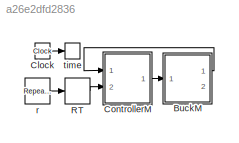
MODEL slx_a26e2dfd2836
KIND model
CONFIG AbsTol = auto
CONFIG FixedStep = t_step
CONFIG MaxStep = auto
CONFIG MinStep = auto
CONFIG RelTol = 1e-3
CONFIG SampleTimeConstraint = Unconstrained
CONFIG Solver = ode5
CONFIG SolverMode = Auto
CONFIG SolverName = ode5
CONFIG StartTime = 0.0
CONFIG StopTime = tf
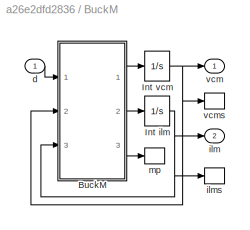
BLOCK [SubSystem] BuckM
  Ports = [1, 2]
  RequestExecContextInheritance = off
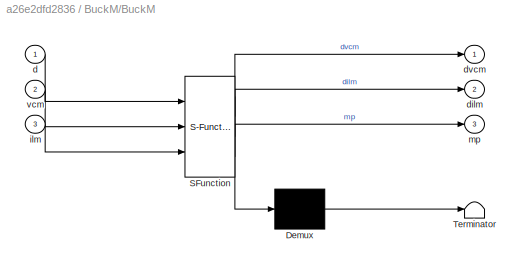
BLOCK [SubSystem] BuckM/BuckM
  ErrorFcn = Stateflow.Translate.translate
  PermitHierarchicalResolution = ExplicitOnly
  Ports = [3, 3]
  RequestExecContextInheritance = off
  SFBlockType = MATLAB Function
  TreatAsAtomicUnit = on
BLOCK [Demux] BuckM/BuckM/ Demux 
  Outputs = 1
  Ports = [1, 1]
BLOCK [S-Function] BuckM/BuckM/ SFunction 
  EnableBusSupport = on
  FunctionName = sf_sfun
  Parameters = Cp,DBm,L,R,Ts,Vi
  PortCounts = [3 4]
  Ports = [3, 4]
  Tag = Stateflow S-Function Bulk_FL_PP_SE_Sim 3
BLOCK [Terminator] BuckM/BuckM/ Terminator 
BLOCK [Inport] BuckM/BuckM/d
  IconDisplay = Port number
BLOCK [Outport] BuckM/BuckM/dilm
  IconDisplay = Port number
  Port = 2
BLOCK [Outport] BuckM/BuckM/dvcm
  IconDisplay = Port number
BLOCK [Inport] BuckM/BuckM/ilm
  IconDisplay = Port number
  Port = 3
BLOCK [Outport] BuckM/BuckM/mp
  IconDisplay = Port number
  Port = 3
BLOCK [Inport] BuckM/BuckM/vcm
  IconDisplay = Port number
  Port = 2
BLOCK [Integrator] BuckM/Int ilm
  LimitOutput = on
  LowerSaturationLimit = 0
  Ports = [1, 1]
BLOCK [Integrator] BuckM/Int vcm
  LimitOutput = on
  LowerSaturationLimit = 0
  Ports = [1, 1]
BLOCK [Inport] BuckM/d
  IconDisplay = Port number
BLOCK [Outport] BuckM/ilm
  IconDisplay = Port number
  Port = 2
BLOCK [ToWorkspace] BuckM/ilms
  FixptAsFi = on
  MaxDataPoints = inf
  Ports = [1]
  SampleTime = -1
  Save2DSignal = 3-D array (concatenate along third dimension)
  VariableName = ilm
BLOCK [ToWorkspace] BuckM/mp
  FixptAsFi = on
  MaxDataPoints = inf
  Ports = [1]
  SampleTime = -1
  Save2DSignal = 3-D array (concatenate along third dimension)
  VariableName = mp
BLOCK [Outport] BuckM/vcm
  IconDisplay = Port number
BLOCK [ToWorkspace] BuckM/vcms
  FixptAsFi = on
  MaxDataPoints = inf
  Ports = [1]
  SampleTime = -1
  Save2DSignal = 3-D array (concatenate along third dimension)
  VariableName = vcm
BLOCK [Clock] Clock
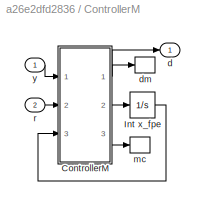
BLOCK [SubSystem] ControllerM
  Ports = [2, 1]
  RequestExecContextInheritance = off
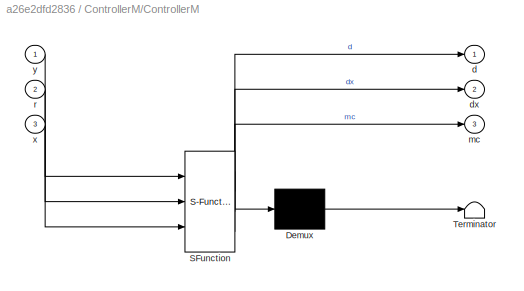
BLOCK [SubSystem] ControllerM/ControllerM
  ErrorFcn = Stateflow.Translate.translate
  PermitHierarchicalResolution = ExplicitOnly
  Ports = [3, 3]
  RequestExecContextInheritance = off
  SFBlockType = MATLAB Function
  TreatAsAtomicUnit = on
BLOCK [Demux] ControllerM/ControllerM/ Demux 
  Outputs = 1
  Ports = [1, 1]
BLOCK [S-Function] ControllerM/ControllerM/ SFunction 
  EnableBusSupport = on
  FunctionName = sf_sfun
  Parameters = A,B,C,Cp,DBm,K0,K1,L,L_fpe,R,Ts,Vi
  PortCounts = [3 4]
  Ports = [3, 4]
  Tag = Stateflow S-Function Bulk_FL_PP_SE_Sim 4
BLOCK [Terminator] ControllerM/ControllerM/ Terminator 
BLOCK [Outport] ControllerM/ControllerM/d
  IconDisplay = Port number
BLOCK [Outport] ControllerM/ControllerM/dx
  IconDisplay = Port number
  Port = 2
BLOCK [Outport] ControllerM/ControllerM/mc
  IconDisplay = Port number
  Port = 3
BLOCK [Inport] ControllerM/ControllerM/r
  IconDisplay = Port number
  Port = 2
BLOCK [Inport] ControllerM/ControllerM/x
  IconDisplay = Port number
  Port = 3
BLOCK [Inport] ControllerM/ControllerM/y
  IconDisplay = Port number
BLOCK [Integrator] ControllerM/Int x_fpe
  InitialCondition = [0; 0]
  LimitOutput = on
  LowerSaturationLimit = [0; 0]
  Ports = [1, 1]
  UpperSaturationLimit = [2*Vi; 2*Vi/R]
BLOCK [Outport] ControllerM/d
  IconDisplay = Port number
BLOCK [ToWorkspace] ControllerM/dm
  FixptAsFi = on
  MaxDataPoints = inf
  Ports = [1]
  SampleTime = -1
  Save2DSignal = 3-D array (concatenate along third dimension)
  VariableName = d
BLOCK [ToWorkspace] ControllerM/mc
  FixptAsFi = on
  MaxDataPoints = inf
  Ports = [1]
  SampleTime = -1
  Save2DSignal = 3-D array (concatenate along third dimension)
  VariableName = mc
BLOCK [Inport] ControllerM/r
  IconDisplay = Port number
  Port = 2
BLOCK [Inport] ControllerM/y
  IconDisplay = Port number
BLOCK [RateTransition] RT
  Deterministic = off
  Integrity = off
  X0 = 2
BLOCK [Reference] r  REF=simulink/Sources/Repeating
Sequence
Stair
  ConRadixGroup = Best Precision: Vector-wise
  LockScale = off
  OutDataType = fixdt(0,8)
  OutDataTypeStr = double
  OutMax = []
  OutMin = []
  OutScaling = 2^-12
  OutValues = [2, 26, 14].'
  OutputDataTypeScalingMode = double
  Ports = [0, 1]
  SourceBlock = simulink/Sources/Repeating\nSequence\nStair
  SourceType = Repeating Sequence Stair
  tsamp = Tr
BLOCK [ToWorkspace] time
  FixptAsFi = on
  MaxDataPoints = inf
  Ports = [1]
  SampleTime = -1
  Save2DSignal = 3-D array (concatenate along third dimension)
  VariableName = t
LINE BuckM/BuckM:1 -> BuckM/Int vcm:1
LINE BuckM/BuckM:2 -> BuckM/Int ilm:1
LINE BuckM/BuckM:3 -> BuckM/mp:1
NET BuckM/Int ilm:1 -> BuckM/BuckM:3, BuckM/ilm:1, BuckM/ilms:1
NET BuckM/Int vcm:1 -> BuckM/BuckM:2, BuckM/vcm:1, BuckM/vcms:1
LINE BuckM/d:1 -> BuckM/BuckM:1
LINE BuckM:1 -> ControllerM:1
LINE Clock:1 -> time:1
NET ControllerM/ControllerM:1 -> ControllerM/d:1, ControllerM/dm:1
LINE ControllerM/ControllerM:2 -> ControllerM/Int x_fpe:1
LINE ControllerM/ControllerM:3 -> ControllerM/mc:1
LINE ControllerM/Int x_fpe:1 -> ControllerM/ControllerM:3
LINE ControllerM/r:1 -> ControllerM/ControllerM:2
LINE ControllerM/y:1 -> ControllerM/ControllerM:1
LINE ControllerM:1 -> BuckM:1
LINE RT:1 -> ControllerM:2
LINE r:1 -> RT:1
note: NET lines group one-source signal fan-out (src -> all destinations, sorted); 1:1 wires keep LINE
CHART BuckM/BuckM states=1 transitions=1
  STATE_LABEL 'eML_blk_kernel()'
  STATE_LABEL 'SCRIPT:\nfunction [dvcm, dilm, mp] = fcn(d, vcm, ilm, Vi, R, L, Cp, Ts, DBm)\ndvcm = (ilm - vcm/R) / Cp;\nilb = DBm * (Vi - vcm);  % Boundary\nif (ilm < ilb) %%%   NONLINEAR   %%%\n    dilm = Vi*d/L - 2*ilm*vcm/(d*Ts*(Vi-vcm));\n    mp = 0;\nelse           %%%   LINEAR      %%%\n    dilm = (Vi*d - vcm) / L;\n    mp = 1;\nend'
CHART ControllerM/ControllerM states=1 transitions=1
  STATE_LABEL 'eML_blk_kernel()'
  STATE_LABEL 'SCRIPT:\nfunction [d, dx, mc] = fcn(y, r, x, K1, K0, R, Cp, L, Vi, Ts, DBm, A, B, C, L_fpe)\nvcm = x(1);\nilm = x(2);\nilb = DBm * (Vi - vcm); % Boundary\nif ilm < ilb %%%   NONLINEAR   %%%\n    % Controller\n    v = - K1 * (ilm - vcm/R) / Cp - K0 * (vcm - r);\n    a = L * ((ilm - vcm/R)/(R*Cp) + Cp*v) / (2*Vi);\n    b = 2 * ilm * vcm * L / (Vi * Ts * abs(Vi - vcm));\n    d = a + sqrt(a^2 + b);\n    % Observ...<+421ch>'
